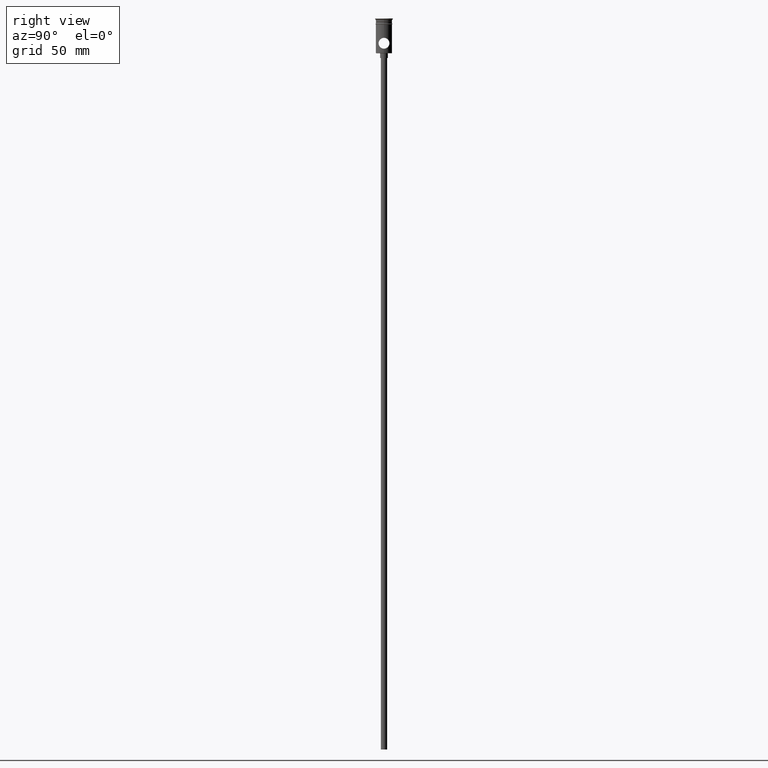
[diagram: clean part render]
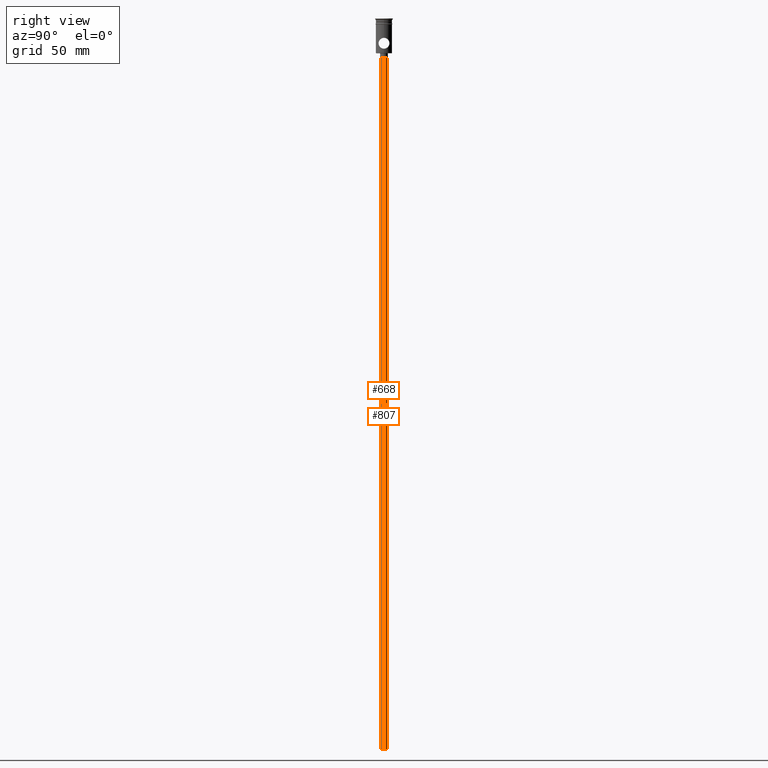
[diagram: same view with one multi-face feature highlighted, each face labeled with its STEP entity id]
A machine part, right view. The highlighted faces form ONE feature: a constant-radius fillet chain: 2 tangent blend faces with common blend radius 2 mm. The faces share edges in the B-rep.
Their STEP definitions:
[1] entity #807 (Cylinder):
#14 = CARTESIAN_POINT ( 'NONE',  ( -2.000000000000000000, 2.449293598294706414E-16, -25.50000000000000000 ) ) ;
#24 = CARTESIAN_POINT ( 'NONE',  ( 0.000000000000000000, 0.000000000000000000, -25.50000000000000000 ) ) ;
#161 = CIRCLE ( 'NONE', #532, 2.000000000000000000 ) ;
#174 = LINE ( 'NONE', #373, #580 ) ;
#197 = VERTEX_POINT ( 'NONE', #1369 ) ;
#205 = CARTESIAN_POINT ( 'NONE',  ( 0.000000000000000000, 0.000000000000000000, -472.5000000000000568 ) ) ;
#251 = EDGE_CURVE ( 'NONE', #1234, #765, #161, .T. ) ;
#373 = CARTESIAN_POINT ( 'NONE',  ( -2.000000000000000000, 2.449293598294706414E-16, -472.5000000000000568 ) ) ;
#392 = VECTOR ( 'NONE', #1155, 1000.000000000000000 ) ;
#397 = DIRECTION ( 'NONE',  ( -1.000000000000000000, 0.000000000000000000, 0.000000000000000000 ) ) ;
#402 = ORIENTED_EDGE ( 'NONE', *, *, #1052, .T. ) ;
#409 = DIRECTION ( 'NONE',  ( -0.000000000000000000, -0.000000000000000000, 1.000000000000000000 ) ) ;
#443 = EDGE_CURVE ( 'NONE', #1073, #197, #462, .T. ) ;
#462 = CIRCLE ( 'NONE', #604, 2.000000000000000000 ) ;
#480 = CARTESIAN_POINT ( 'NONE',  ( -2.000000000000000000, 2.449293598294706414E-16, -472.5000000000000568 ) ) ;
#532 = AXIS2_PLACEMENT_3D ( 'NONE', #24, #793, #1349 ) ;
#550 = DIRECTION ( 'NONE',  ( 1.000000000000000000, 0.000000000000000000, 0.000000000000000000 ) ) ;
#560 = EDGE_LOOP ( 'NONE', ( #564, #402, #1446, #1029 ) ) ;
#564 = ORIENTED_EDGE ( 'NONE', *, *, #443, .F. ) ;
#571 = CARTESIAN_POINT ( 'NONE',  ( 2.000000000000000000, 0.000000000000000000, -472.5000000000000568 ) ) ;
#580 = VECTOR ( 'NONE', #1188, 1000.000000000000000 ) ;
#604 = AXIS2_PLACEMENT_3D ( 'NONE', #205, #1434, #397 ) ;
#765 = VERTEX_POINT ( 'NONE', #1242 ) ;
#773 = CYLINDRICAL_SURFACE ( 'NONE', #1299, 2.000000000000000000 ) ;
#793 = DIRECTION ( 'NONE',  ( 0.000000000000000000, 0.000000000000000000, -1.000000000000000000 ) ) ;
#807 = ADVANCED_FACE ( 'NONE', ( #1321 ), #773, .T. ) ;
#816 = LINE ( 'NONE', #571, #392 ) ;
#909 = EDGE_CURVE ( 'NONE', #197, #765, #816, .T. ) ;
#1012 = CARTESIAN_POINT ( 'NONE',  ( 0.000000000000000000, 0.000000000000000000, -472.5000000000000568 ) ) ;
#1029 = ORIENTED_EDGE ( 'NONE', *, *, #909, .F. ) ;
#1052 = EDGE_CURVE ( 'NONE', #1073, #1234, #174, .T. ) ;
#1073 = VERTEX_POINT ( 'NONE', #480 ) ;
#1155 = DIRECTION ( 'NONE',  ( -0.000000000000000000, -0.000000000000000000, 1.000000000000000000 ) ) ;
#1188 = DIRECTION ( 'NONE',  ( -0.000000000000000000, -0.000000000000000000, 1.000000000000000000 ) ) ;
#1234 = VERTEX_POINT ( 'NONE', #14 ) ;
#1242 = CARTESIAN_POINT ( 'NONE',  ( 2.000000000000000000, 0.000000000000000000, -25.50000000000000000 ) ) ;
#1299 = AXIS2_PLACEMENT_3D ( 'NONE', #1012, #409, #550 ) ;
#1321 = FACE_OUTER_BOUND ( 'NONE', #560, .T. ) ;
#1349 = DIRECTION ( 'NONE',  ( -1.000000000000000000, 0.000000000000000000, 0.000000000000000000 ) ) ;
#1369 = CARTESIAN_POINT ( 'NONE',  ( 2.000000000000000000, 0.000000000000000000, -472.5000000000000568 ) ) ;
#1434 = DIRECTION ( 'NONE',  ( 0.000000000000000000, 0.000000000000000000, -1.000000000000000000 ) ) ;
#1446 = ORIENTED_EDGE ( 'NONE', *, *, #251, .T. ) ;
[2] entity #668 (Cylinder):
#14 = CARTESIAN_POINT ( 'NONE',  ( -2.000000000000000000, 2.449293598294706414E-16, -25.50000000000000000 ) ) ;
#27 = CIRCLE ( 'NONE', #325, 2.000000000000000000 ) ;
#60 = DIRECTION ( 'NONE',  ( 0.000000000000000000, 0.000000000000000000, -1.000000000000000000 ) ) ;
#174 = LINE ( 'NONE', #373, #580 ) ;
#197 = VERTEX_POINT ( 'NONE', #1369 ) ;
#212 = CARTESIAN_POINT ( 'NONE',  ( 0.000000000000000000, 0.000000000000000000, -472.5000000000000568 ) ) ;
#268 = DIRECTION ( 'NONE',  ( 0.000000000000000000, 0.000000000000000000, -1.000000000000000000 ) ) ;
#285 = ORIENTED_EDGE ( 'NONE', *, *, #1307, .T. ) ;
#325 = AXIS2_PLACEMENT_3D ( 'NONE', #738, #60, #1279 ) ;
#334 = EDGE_CURVE ( 'NONE', #197, #1073, #966, .T. ) ;
#373 = CARTESIAN_POINT ( 'NONE',  ( -2.000000000000000000, 2.449293598294706414E-16, -472.5000000000000568 ) ) ;
#392 = VECTOR ( 'NONE', #1155, 1000.000000000000000 ) ;
#414 = AXIS2_PLACEMENT_3D ( 'NONE', #212, #662, #1383 ) ;
#467 = ORIENTED_EDGE ( 'NONE', *, *, #334, .F. ) ;
#480 = CARTESIAN_POINT ( 'NONE',  ( -2.000000000000000000, 2.449293598294706414E-16, -472.5000000000000568 ) ) ;
#544 = ORIENTED_EDGE ( 'NONE', *, *, #909, .T. ) ;
#571 = CARTESIAN_POINT ( 'NONE',  ( 2.000000000000000000, 0.000000000000000000, -472.5000000000000568 ) ) ;
#580 = VECTOR ( 'NONE', #1188, 1000.000000000000000 ) ;
#591 = ORIENTED_EDGE ( 'NONE', *, *, #1052, .F. ) ;
#624 = EDGE_LOOP ( 'NONE', ( #591, #467, #544, #285 ) ) ;
#654 = AXIS2_PLACEMENT_3D ( 'NONE', #720, #268, #1384 ) ;
#662 = DIRECTION ( 'NONE',  ( -0.000000000000000000, -0.000000000000000000, 1.000000000000000000 ) ) ;
#668 = ADVANCED_FACE ( 'NONE', ( #930 ), #902, .T. ) ;
#720 = CARTESIAN_POINT ( 'NONE',  ( 0.000000000000000000, 0.000000000000000000, -472.5000000000000568 ) ) ;
#738 = CARTESIAN_POINT ( 'NONE',  ( 0.000000000000000000, 0.000000000000000000, -25.50000000000000000 ) ) ;
#765 = VERTEX_POINT ( 'NONE', #1242 ) ;
#816 = LINE ( 'NONE', #571, #392 ) ;
#902 = CYLINDRICAL_SURFACE ( 'NONE', #414, 2.000000000000000000 ) ;
#909 = EDGE_CURVE ( 'NONE', #197, #765, #816, .T. ) ;
#930 = FACE_OUTER_BOUND ( 'NONE', #624, .T. ) ;
#966 = CIRCLE ( 'NONE', #654, 2.000000000000000000 ) ;
#1052 = EDGE_CURVE ( 'NONE', #1073, #1234, #174, .T. ) ;
#1073 = VERTEX_POINT ( 'NONE', #480 ) ;
#1155 = DIRECTION ( 'NONE',  ( -0.000000000000000000, -0.000000000000000000, 1.000000000000000000 ) ) ;
#1188 = DIRECTION ( 'NONE',  ( -0.000000000000000000, -0.000000000000000000, 1.000000000000000000 ) ) ;
#1234 = VERTEX_POINT ( 'NONE', #14 ) ;
#1242 = CARTESIAN_POINT ( 'NONE',  ( 2.000000000000000000, 0.000000000000000000, -25.50000000000000000 ) ) ;
#1279 = DIRECTION ( 'NONE',  ( -1.000000000000000000, 0.000000000000000000, 0.000000000000000000 ) ) ;
#1307 = EDGE_CURVE ( 'NONE', #765, #1234, #27, .T. ) ;
#1369 = CARTESIAN_POINT ( 'NONE',  ( 2.000000000000000000, 0.000000000000000000, -472.5000000000000568 ) ) ;
#1383 = DIRECTION ( 'NONE',  ( 1.000000000000000000, 0.000000000000000000, 0.000000000000000000 ) ) ;
#1384 = DIRECTION ( 'NONE',  ( -1.000000000000000000, 0.000000000000000000, 0.000000000000000000 ) ) ;